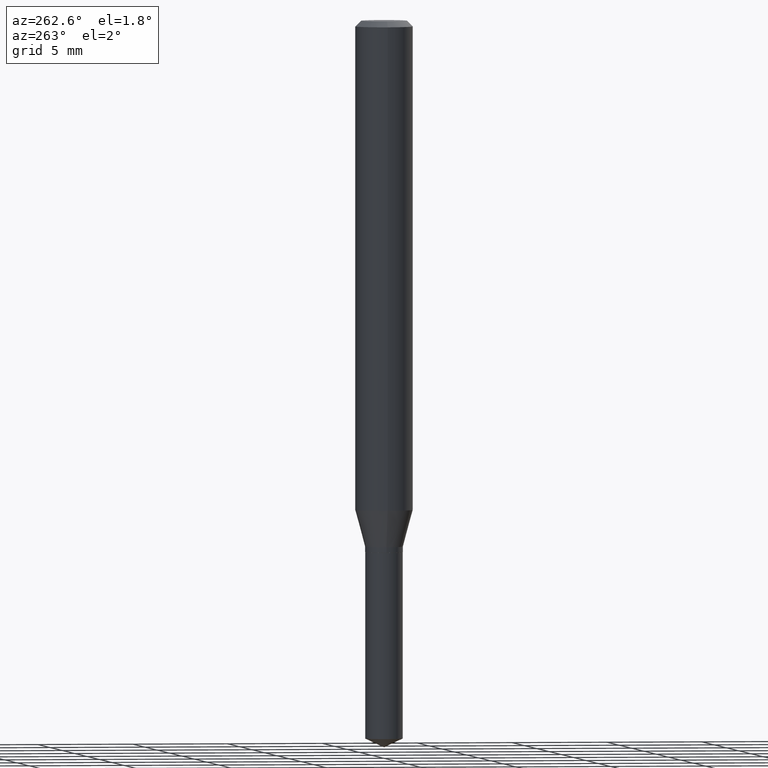
[diagram: clean part render]
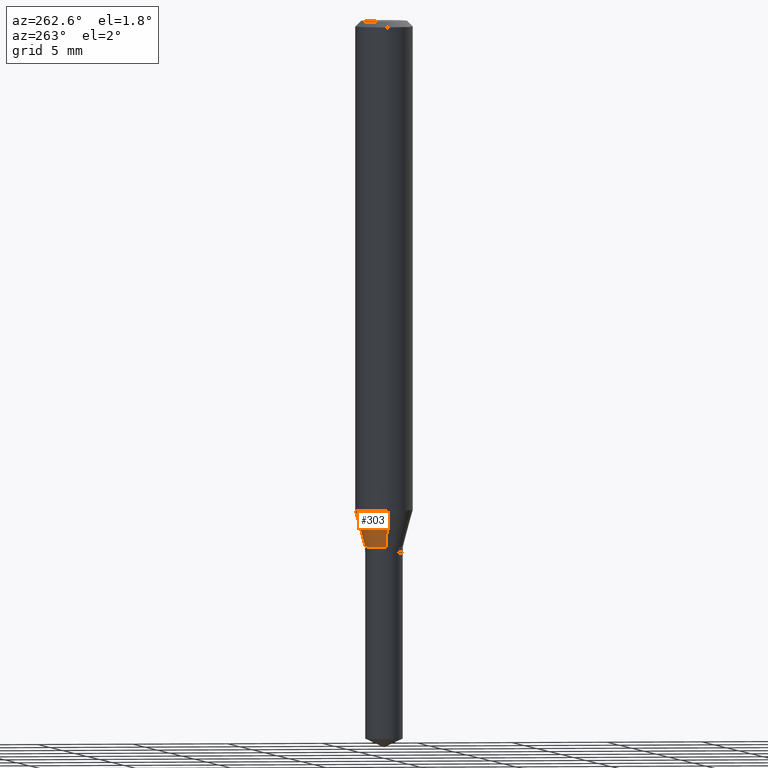
[diagram: same view with one face highlighted and labeled with its STEP entity id]
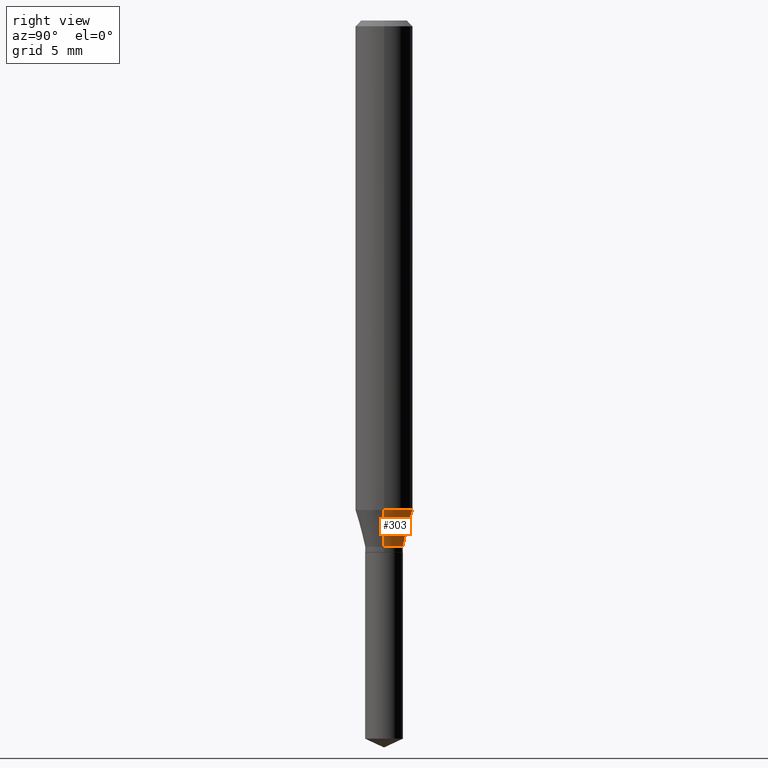
[diagram: same view with one face highlighted and labeled with its STEP entity id]
A machine part, auxiliary view. The second image highlights one B-rep face of the part: STEP entity #303.
A second angle (right view) of the same face is appended — the face is thin or edge-on in the first view.
In plain terms, the highlighted conical surface has half-angle 15 deg.
Its self-contained STEP definition (entity closure, byte-faithful):
#18 = EDGE_CURVE ( 'NONE', #201, #302, #119, .T. ) ;
#38 = EDGE_CURVE ( 'NONE', #304, #201, #156, .T. ) ;
#39 = ORIENTED_EDGE ( 'NONE', *, *, #268, .F. ) ;
#43 = CARTESIAN_POINT ( 'NONE',  ( -0.03880000000000000115, -3.524612281788902517E-15, -1.082899999999999974 ) ) ;
#73 = CARTESIAN_POINT ( 'NONE',  ( 0.05905000000000011628, -3.929403776508231470E-15, -1.007325971146729948 ) ) ;
#82 = CARTESIAN_POINT ( 'NONE',  ( 2.463384240099476969E-29, -3.517059830390856155E-15, -1.007325971146729948 ) ) ;
#83 = ORIENTED_EDGE ( 'NONE', *, *, #18, .T. ) ;
#85 = CARTESIAN_POINT ( 'NONE',  ( 0.03880000000000000115, -4.051864093727469133E-15, -1.082899999999999974 ) ) ;
#103 = VECTOR ( 'NONE', #176, 39.37007874015748854 ) ;
#119 = LINE ( 'NONE', #382, #323 ) ;
#123 = CONICAL_SURFACE ( 'NONE', #396, 0.03880000000000000115, 0.2617993877991499074 ) ;
#156 = CIRCLE ( 'NONE', #282, 0.03880000000000000115 ) ;
#157 = DIRECTION ( 'NONE',  ( -2.445468806185136597E-29, 3.491481338843145583E-15, 1.000000000000000000 ) ) ;
#164 = VERTEX_POINT ( 'NONE', #73 ) ;
#170 = DIRECTION ( 'NONE',  ( -2.445468806185136597E-29, 3.491481338843145583E-15, 1.000000000000000000 ) ) ;
#176 = DIRECTION ( 'NONE',  ( 0.2588190451025211836, 1.565188264969622559E-15, 0.9659258262890679791 ) ) ;
#183 = EDGE_LOOP ( 'NONE', ( #236, #83, #39, #252 ) ) ;
#201 = VERTEX_POINT ( 'NONE', #43 ) ;
#206 = CARTESIAN_POINT ( 'NONE',  ( 2.648198170217884181E-29, -3.780925141833242313E-15, -1.082899999999999974 ) ) ;
#209 = LINE ( 'NONE', #363, #103 ) ;
#236 = ORIENTED_EDGE ( 'NONE', *, *, #38, .T. ) ;
#238 = DIRECTION ( 'NONE',  ( -2.445468806185136597E-29, 3.491481338843145583E-15, 1.000000000000000000 ) ) ;
#252 = ORIENTED_EDGE ( 'NONE', *, *, #457, .F. ) ;
#268 = EDGE_CURVE ( 'NONE', #164, #302, #293, .T. ) ;
#269 = FACE_OUTER_BOUND ( 'NONE', #183, .T. ) ;
#282 = AXIS2_PLACEMENT_3D ( 'NONE', #299, #157, #338 ) ;
#293 = CIRCLE ( 'NONE', #450, 0.05905000000000011628 ) ;
#299 = CARTESIAN_POINT ( 'NONE',  ( 2.648198170217884181E-29, -3.780925141833242313E-15, -1.082899999999999974 ) ) ;
#302 = VERTEX_POINT ( 'NONE', #460 ) ;
#303 = ADVANCED_FACE ( 'NONE', ( #269 ), #123, .T. ) ;
#304 = VERTEX_POINT ( 'NONE', #85 ) ;
#310 = DIRECTION ( 'NONE',  ( -0.2588190451025211836, 5.211531920934547886E-15, 0.9659258262890679791 ) ) ;
#312 = DIRECTION ( 'NONE',  ( 1.000000000000000000, -6.982962677686260400E-15, 0.000000000000000000 ) ) ;
#323 = VECTOR ( 'NONE', #310, 39.37007874015748854 ) ;
#338 = DIRECTION ( 'NONE',  ( 1.000000000000000000, -6.982962677686260400E-15, 0.000000000000000000 ) ) ;
#363 = CARTESIAN_POINT ( 'NONE',  ( 0.03880000000000000115, -4.051864093727469133E-15, -1.082899999999999974 ) ) ;
#382 = CARTESIAN_POINT ( 'NONE',  ( -0.03880000000000000115, -3.505234560358323432E-15, -1.082899999999999974 ) ) ;
#396 = AXIS2_PLACEMENT_3D ( 'NONE', #206, #170, #312 ) ;
#426 = DIRECTION ( 'NONE',  ( 1.000000000000000000, -6.982962677686266711E-15, 0.000000000000000000 ) ) ;
#450 = AXIS2_PLACEMENT_3D ( 'NONE', #82, #238, #426 ) ;
#457 = EDGE_CURVE ( 'NONE', #304, #164, #209, .T. ) ;
#460 = CARTESIAN_POINT ( 'NONE',  ( -0.05905000000000011628, -3.097484344924516662E-15, -1.007325971146729948 ) ) ;